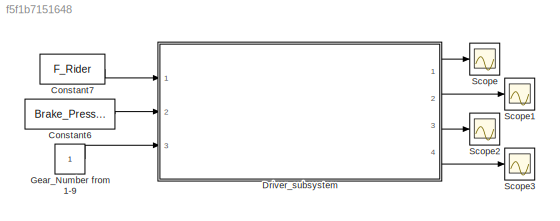
MODEL slx_f5f1b7151648
KIND model
CONFIG AbsTol = auto
CONFIG EnableMultiTasking = off
CONFIG FixedStep = auto
CONFIG InitFcn = F_Rider = 85;\nBrake_Pressure = 0;\nCrank_Length = 0.150;\nAngle_of_crank = [0:1:360;0:1:360;]';
CONFIG MaxStep = 0.01
CONFIG MinStep = auto
CONFIG RelTol = 1e-3
CONFIG SampleTimeConstraint = Unconstrained
CONFIG Solver = VariableStepAuto
CONFIG SolverName = VariableStepAuto
CONFIG StartTime = 0.0
CONFIG StopTime = 10
BLOCK [Constant] Constant6
  Value = Brake_Pressure
BLOCK [Constant] Constant7
  Value = F_Rider
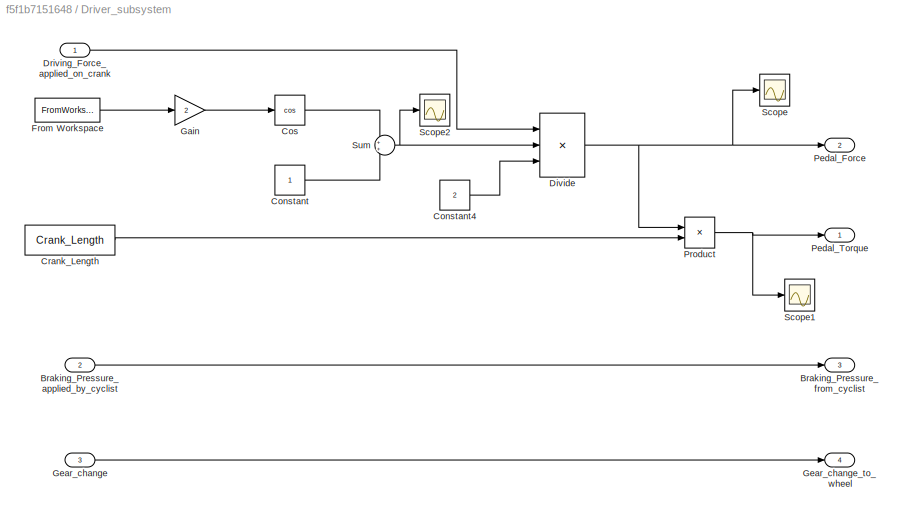
BLOCK [SubSystem] Driver_subsystem
  Ports = [3, 4]
  RequestExecContextInheritance = off
BLOCK [Inport] Driver_subsystem/Braking_Pressure_applied_by_cyclist
  IconDisplay = Port number
  Port = 2
BLOCK [Outport] Driver_subsystem/Braking_Pressure_from_cyclist
  IconDisplay = Port number
  Port = 3
BLOCK [Constant] Driver_subsystem/Constant
BLOCK [Constant] Driver_subsystem/Constant4
  Value = 2
BLOCK [Trigonometry] Driver_subsystem/Cos
  Operator = cos
  Ports = [1, 1]
BLOCK [Constant] Driver_subsystem/Crank_Length
  Value = Crank_Length
BLOCK [Product] Driver_subsystem/Divide
  InputSameDT = off
  Inputs = **/
  OutDataTypeStr = Inherit: Inherit via internal rule
  Ports = [3, 1]
  RndMeth = Floor
  SaturateOnIntegerOverflow = off
BLOCK [Inport] Driver_subsystem/Driving_Force_applied_on_crank
  IconDisplay = Port number
BLOCK [FromWorkspace] Driver_subsystem/From Workspace
  SampleTime = 0
  VariableName = Angle_of_crank
  ZeroCross = on
BLOCK [Gain] Driver_subsystem/Gain
  Gain = 2
  OutDataTypeStr = Inherit: Inherit via internal rule
  ParamDataTypeStr = Inherit: Inherit via internal rule
  SaturateOnIntegerOverflow = off
BLOCK [Inport] Driver_subsystem/Gear_change
  IconDisplay = Port number
  Port = 3
BLOCK [Outport] Driver_subsystem/Gear_change_to_wheel
  IconDisplay = Port number
  Port = 4
  VectorParamsAs1DForOutWhenUnconnected = off
BLOCK [Outport] Driver_subsystem/Pedal_Force
  IconDisplay = Port number
  Port = 2
BLOCK [Outport] Driver_subsystem/Pedal_Torque
  IconDisplay = Port number
BLOCK [Product] Driver_subsystem/Product
  InputSameDT = off
  OutDataTypeStr = Inherit: Inherit via internal rule
  Ports = [2, 1]
  RndMeth = Floor
  SaturateOnIntegerOverflow = off
BLOCK [Scope] Driver_subsystem/Scope
  Floating = off
  NumInputPorts = 1
  Ports = [1]
  ScopeSpecificationString = Simulink.scopes.TimeScopeBlockCfg('CurrentConfiguration', extmgr.ConfigurationSet(extmgr.Configuration('Core','General UI',true,'FigureColor',[1 1 1]),extmgr.Configuration('Core','Source UI',true),extmgr.Configuration('Sources','WiredSimulink',true),extmgr.Configuration('Visuals','Time Domain',true,'SerializedDisplays',{struct('MinYLimReal','-11.6206','MaxYLimReal','255.3392','YLabelReal','','MinY...<+1703ch>
BLOCK [Scope] Driver_subsystem/Scope1
  Floating = off
  NumInputPorts = 1
  Ports = [1]
  ScopeSpecificationString = Simulink.scopes.TimeScopeBlockCfg('CurrentConfiguration', extmgr.ConfigurationSet(extmgr.Configuration('Core','General UI',true,'FigureColor',[1 1 1]),extmgr.Configuration('Core','Source UI',true),extmgr.Configuration('Sources','WiredSimulink',true,'DataLoggingVariableName','ScopeData1'),extmgr.Configuration('Visuals','Time Domain',true,'SerializedDisplays',{struct('MinYLimReal','-4.65153','MaxYLi...<+1739ch>
BLOCK [Scope] Driver_subsystem/Scope2
  Floating = off
  NumInputPorts = 1
  Ports = [1]
  ScopeSpecificationString = Simulink.scopes.TimeScopeBlockCfg('CurrentConfiguration', extmgr.ConfigurationSet(extmgr.Configuration('Core','General UI',true),extmgr.Configuration('Core','Source UI',true),extmgr.Configuration('Sources','WiredSimulink',true,'DataLoggingVariableName','ScopeData1'),extmgr.Configuration('Visuals','Time Domain',true,'SerializedDisplays',{struct('MinYLimReal','-0.18935','MaxYLimReal','2.10211','YLab...<+1408ch>
BLOCK [Sum] Driver_subsystem/Sum
  IconShape = round
  InputSameDT = off
  OutDataTypeStr = Inherit: Inherit via internal rule
  Ports = [2, 1]
  SaturateOnIntegerOverflow = off
BLOCK [Constant] Gear_Number from 1-9
BLOCK [Scope] Scope
  Floating = off
  NumInputPorts = 1
  Ports = [1]
  ScopeSpecificationString = Simulink.scopes.TimeScopeBlockCfg('CurrentConfiguration', extmgr.ConfigurationSet(extmgr.Configuration('Core','General UI',true),extmgr.Configuration('Core','Source UI',true),extmgr.Configuration('Sources','WiredSimulink',true,'DataLoggingVariableName','ScopeData1'),extmgr.Configuration('Visuals','Time Domain',true,'SerializedDisplays',{struct('MinYLimReal','-1.87499','MaxYLimReal','16.875','YLabe...<+1450ch>
BLOCK [Scope] Scope1
  Floating = off
  NumInputPorts = 1
  Ports = [1]
  ScopeSpecificationString = Simulink.scopes.TimeScopeBlockCfg('CurrentConfiguration', extmgr.ConfigurationSet(extmgr.Configuration('Core','General UI',true),extmgr.Configuration('Core','Source UI',true),extmgr.Configuration('Sources','WiredSimulink',true,'DataLoggingVariableName','ScopeData2'),extmgr.Configuration('Visuals','Time Domain',true,'SerializedDisplays',{struct('MinYLimReal','-31.25','MaxYLimReal','281.25','YLabelR...<+1369ch>
BLOCK [Scope] Scope2
  Floating = off
  NumInputPorts = 1
  Ports = [1]
  ScopeSpecificationString = Simulink.scopes.TimeScopeBlockCfg('CurrentConfiguration', extmgr.ConfigurationSet(extmgr.Configuration('Core','General UI',true),extmgr.Configuration('Core','Source UI',true),extmgr.Configuration('Sources','WiredSimulink',true,'DataLoggingVariableName','ScopeData3'),extmgr.Configuration('Visuals','Time Domain',true),extmgr.Configuration('Tools','Plot Navigation',true),extmgr.Configuration('Tools',...<+40ch>
BLOCK [Scope] Scope3
  Floating = off
  NumInputPorts = 1
  Ports = [1]
  ScopeSpecificationString = Simulink.scopes.TimeScopeBlockCfg('CurrentConfiguration', extmgr.ConfigurationSet(extmgr.Configuration('Core','General UI',true),extmgr.Configuration('Core','Source UI',true),extmgr.Configuration('Sources','WiredSimulink',true,'DataLoggingVariableName','ScopeData4'),extmgr.Configuration('Visuals','Time Domain',true),extmgr.Configuration('Tools','Plot Navigation',true),extmgr.Configuration('Tools',...<+40ch>
LINE Constant6:1 -> Driver_subsystem:2
LINE Constant7:1 -> Driver_subsystem:1
LINE Driver_subsystem/Braking_Pressure_applied_by_cyclist:1 -> Driver_subsystem/Braking_Pressure_from_cyclist:1
LINE Driver_subsystem/Constant4:1 -> Driver_subsystem/Divide:3
LINE Driver_subsystem/Constant:1 -> Driver_subsystem/Sum:2
LINE Driver_subsystem/Cos:1 -> Driver_subsystem/Sum:1
LINE Driver_subsystem/Crank_Length:1 -> Driver_subsystem/Product:2
NET Driver_subsystem/Divide:1 -> Driver_subsystem/Pedal_Force:1, Driver_subsystem/Product:1, Driver_subsystem/Scope:1
LINE Driver_subsystem/Driving_Force_applied_on_crank:1 -> Driver_subsystem/Divide:1
LINE Driver_subsystem/From Workspace:1 -> Driver_subsystem/Gain:1
LINE Driver_subsystem/Gain:1 -> Driver_subsystem/Cos:1
LINE Driver_subsystem/Gear_change:1 -> Driver_subsystem/Gear_change_to_wheel:1
NET Driver_subsystem/Product:1 -> Driver_subsystem/Pedal_Torque:1, Driver_subsystem/Scope1:1
NET Driver_subsystem/Sum:1 -> Driver_subsystem/Divide:2, Driver_subsystem/Scope2:1
LINE Driver_subsystem:1 -> Scope:1
LINE Driver_subsystem:2 -> Scope1:1
LINE Driver_subsystem:3 -> Scope2:1
LINE Driver_subsystem:4 -> Scope3:1
LINE Gear_Number from 1-9:1 -> Driver_subsystem:3
note: NET lines group one-source signal fan-out (src -> all destinations, sorted); 1:1 wires keep LINE
